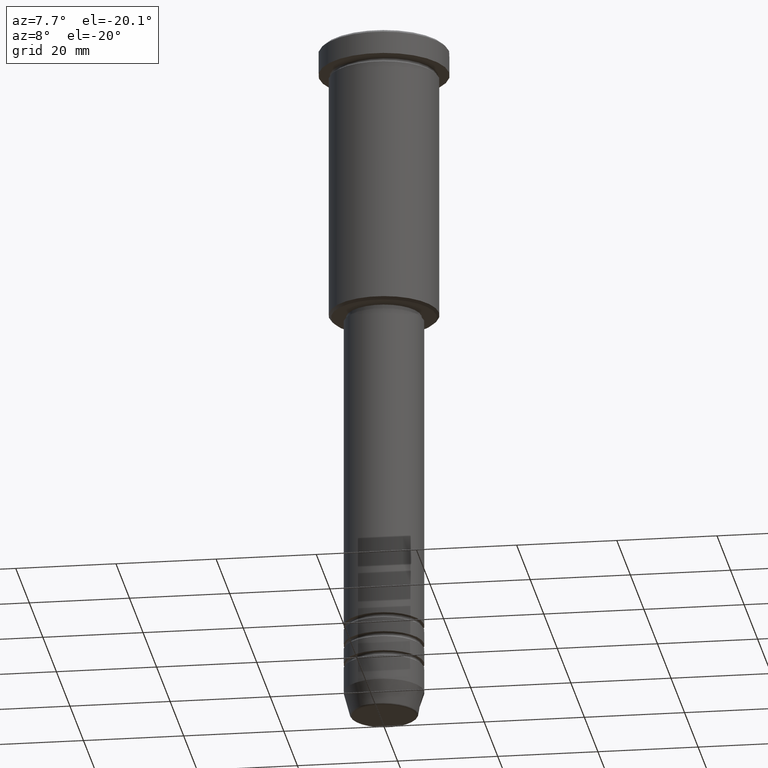
[diagram: clean part render]
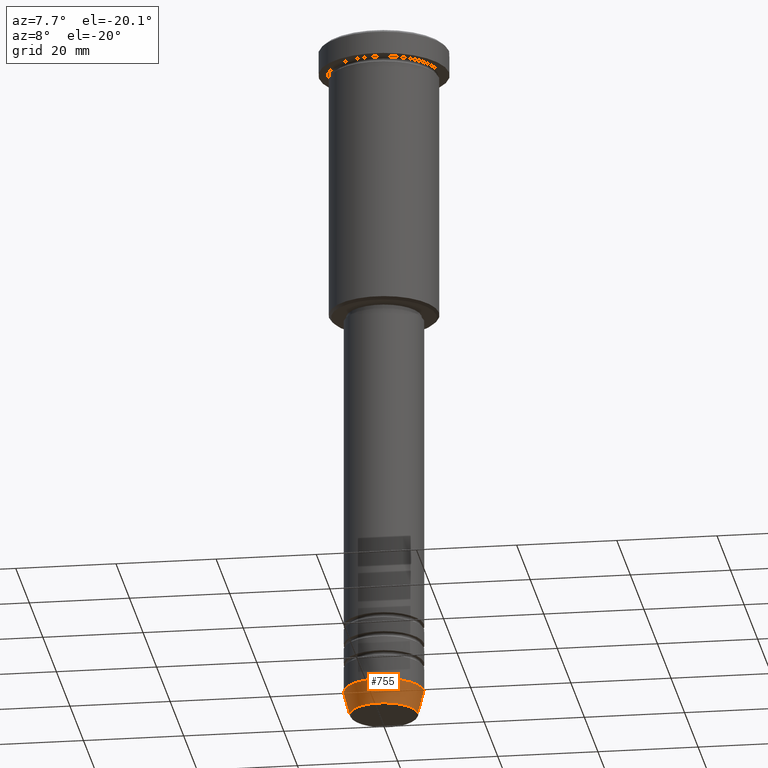
[diagram: same view with one face highlighted and labeled with its STEP entity id]
A machine part, auxiliary view. The second image highlights one B-rep face of the part: STEP entity #755.
In plain terms, the highlighted conical surface has half-angle 15 deg.
Its self-contained STEP definition (entity closure, byte-faithful):
#12 = CARTESIAN_POINT ( 'NONE',  ( 0.000000000000000000, 0.000000000000000000, -139.6294095225512706 ) ) ;
#22 = CARTESIAN_POINT ( 'NONE',  ( -8.000000000000000000, 9.797174393178825657E-16, -135.0000000000000000 ) ) ;
#27 = CARTESIAN_POINT ( 'NONE',  ( -6.759553456999436882, 9.037619948979304241E-16, -139.6294095225512706 ) ) ;
#28 = VERTEX_POINT ( 'NONE', #276 ) ;
#90 = CIRCLE ( 'NONE', #136, 6.759553456999436882 ) ;
#129 = ORIENTED_EDGE ( 'NONE', *, *, #305, .F. ) ;
#136 = AXIS2_PLACEMENT_3D ( 'NONE', #12, #363, #553 ) ;
#212 = DIRECTION ( 'NONE',  ( -0.000000000000000000, -0.000000000000000000, 1.000000000000000000 ) ) ;
#235 = AXIS2_PLACEMENT_3D ( 'NONE', #503, #355, #892 ) ;
#256 = EDGE_CURVE ( 'NONE', #816, #404, #90, .T. ) ;
#276 = CARTESIAN_POINT ( 'NONE',  ( 8.000000000000000000, 0.000000000000000000, -135.0000000000000000 ) ) ;
#277 = EDGE_LOOP ( 'NONE', ( #682, #956, #440, #129 ) ) ;
#305 = EDGE_CURVE ( 'NONE', #1093, #28, #1142, .T. ) ;
#327 = DIRECTION ( 'NONE',  ( 1.000000000000000000, 0.000000000000000000, 0.000000000000000000 ) ) ;
#355 = DIRECTION ( 'NONE',  ( -0.000000000000000000, -0.000000000000000000, 1.000000000000000000 ) ) ;
#356 = CARTESIAN_POINT ( 'NONE',  ( -8.000000000000000000, 9.797174393178825657E-16, -135.0000000000000000 ) ) ;
#363 = DIRECTION ( 'NONE',  ( -0.000000000000000000, -0.000000000000000000, 1.000000000000000000 ) ) ;
#404 = VERTEX_POINT ( 'NONE', #1099 ) ;
#408 = CARTESIAN_POINT ( 'NONE',  ( 0.000000000000000000, 0.000000000000000000, -135.0000000000000000 ) ) ;
#440 = ORIENTED_EDGE ( 'NONE', *, *, #645, .T. ) ;
#503 = CARTESIAN_POINT ( 'NONE',  ( 0.000000000000000000, 0.000000000000000000, -135.0000000000000000 ) ) ;
#521 = CARTESIAN_POINT ( 'NONE',  ( 8.000000000000000000, 0.000000000000000000, -135.0000000000000000 ) ) ;
#553 = DIRECTION ( 'NONE',  ( 1.000000000000000000, 0.000000000000000000, 0.000000000000000000 ) ) ;
#571 = LINE ( 'NONE', #22, #603 ) ;
#603 = VECTOR ( 'NONE', #1049, 1000.000000000000114 ) ;
#637 = AXIS2_PLACEMENT_3D ( 'NONE', #408, #212, #327 ) ;
#645 = EDGE_CURVE ( 'NONE', #404, #28, #980, .T. ) ;
#682 = ORIENTED_EDGE ( 'NONE', *, *, #965, .F. ) ;
#755 = ADVANCED_FACE ( 'NONE', ( #1052 ), #796, .T. ) ;
#796 = CONICAL_SURFACE ( 'NONE', #235, 8.000000000000000000, 0.2617993877991502405 ) ;
#816 = VERTEX_POINT ( 'NONE', #27 ) ;
#866 = DIRECTION ( 'NONE',  ( 0.2588190451025214611, 0.000000000000000000, 0.9659258262890679791 ) ) ;
#892 = DIRECTION ( 'NONE',  ( 1.000000000000000000, 0.000000000000000000, 0.000000000000000000 ) ) ;
#956 = ORIENTED_EDGE ( 'NONE', *, *, #256, .T. ) ;
#965 = EDGE_CURVE ( 'NONE', #816, #1093, #571, .T. ) ;
#980 = LINE ( 'NONE', #521, #991 ) ;
#991 = VECTOR ( 'NONE', #866, 1000.000000000000114 ) ;
#1049 = DIRECTION ( 'NONE',  ( -0.2588190451025214611, 3.169619151431774186E-17, 0.9659258262890679791 ) ) ;
#1052 = FACE_OUTER_BOUND ( 'NONE', #277, .T. ) ;
#1093 = VERTEX_POINT ( 'NONE', #356 ) ;
#1099 = CARTESIAN_POINT ( 'NONE',  ( 6.759553456999436882, 0.000000000000000000, -139.6294095225512706 ) ) ;
#1142 = CIRCLE ( 'NONE', #637, 8.000000000000000000 ) ;